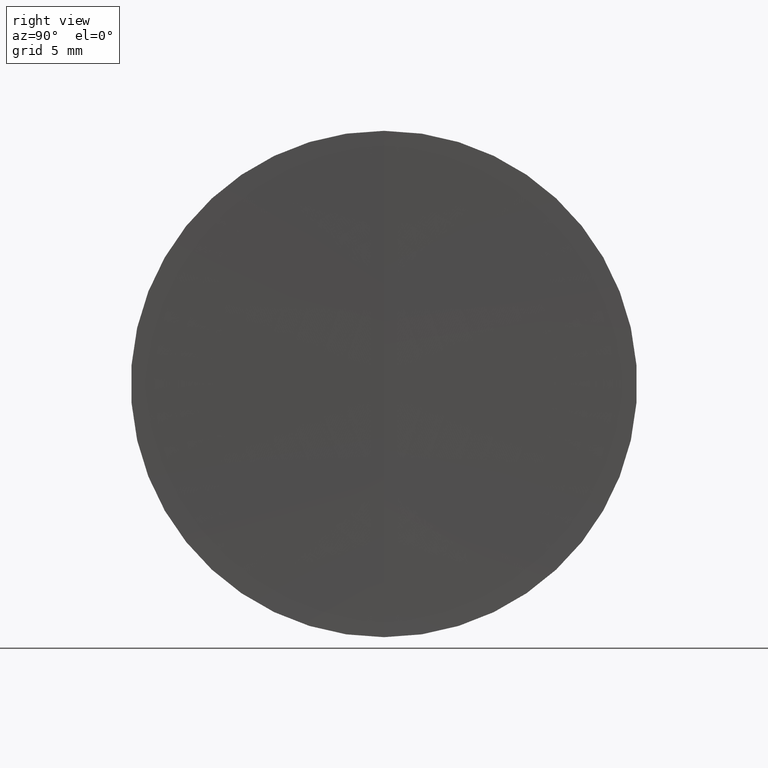
[diagram: clean part render]
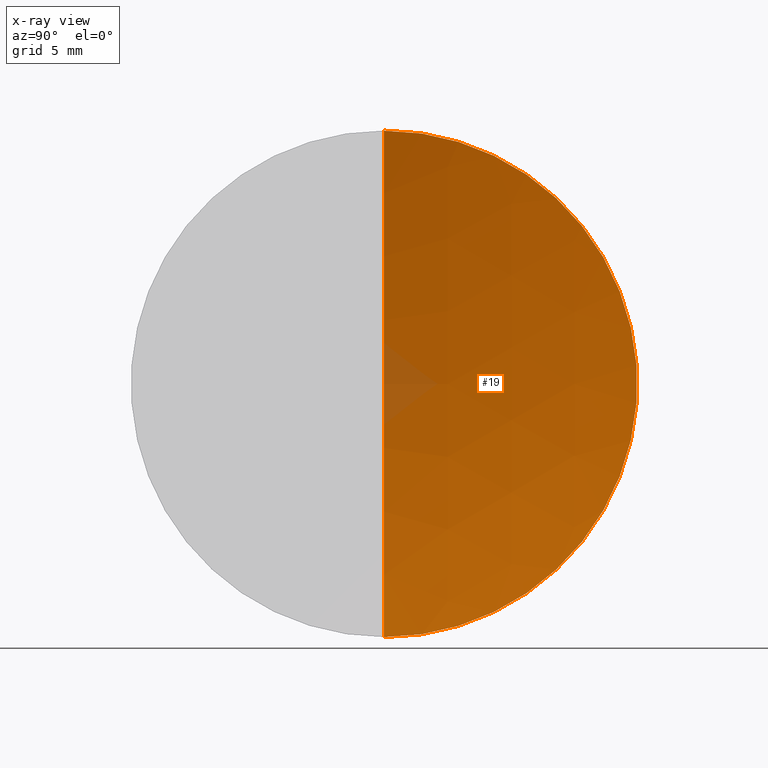
[diagram: x-ray — body ghosted, one internal face saturated and labeled with its STEP entity id]
A machine part, right view, then the same camera in x-ray: the body is ghosted and one INTERNAL B-rep face — a face not visible from any outside direction — is saturated and labeled: STEP entity #19.
In plain terms, the highlighted spherical surface has radius 49.9 mm.
Its self-contained STEP definition (entity closure, byte-faithful):
#3 = CIRCLE ( 'NONE', #310, 49.90000000000014800 ) ;
#19 = ADVANCED_FACE ( 'NONE', ( #207 ), #73, .F. ) ;
#30 = EDGE_CURVE ( 'NONE', #163, #271, #325, .T. ) ;
#32 = CARTESIAN_POINT ( 'NONE',  ( 305.5946505410973400, 0.0000000000000000000, -3.235630404515127800E-022 ) ) ;
#39 = DIRECTION ( 'NONE',  ( -2.249639673992786700E-032, -1.000000000000000000, -1.224646799147353200E-016 ) ) ;
#70 = CIRCLE ( 'NONE', #225, 49.90000000000014800 ) ;
#73 = SPHERICAL_SURFACE ( 'NONE', #152, 49.90000000000014800 ) ;
#82 = ORIENTED_EDGE ( 'NONE', *, *, #230, .T. ) ;
#90 = CARTESIAN_POINT ( 'NONE',  ( 255.6946505410971900, 0.0000000000000000000, 6.110987204182271600E-015 ) ) ;
#92 = DIRECTION ( 'NONE',  ( -0.0000000000000000000, -1.000000000000000000, -0.0000000000000000000 ) ) ;
#102 = CARTESIAN_POINT ( 'NONE',  ( 257.3378375505981200, 0.0000000000000000000, 12.69999999999999900 ) ) ;
#128 = ORIENTED_EDGE ( 'NONE', *, *, #30, .F. ) ;
#149 = VERTEX_POINT ( 'NONE', #90 ) ;
#152 = AXIS2_PLACEMENT_3D ( 'NONE', #32, #92, #258 ) ;
#156 = ORIENTED_EDGE ( 'NONE', *, *, #260, .F. ) ;
#163 = VERTEX_POINT ( 'NONE', #102 ) ;
#203 = DIRECTION ( 'NONE',  ( 0.0000000000000000000, 0.0000000000000000000, 1.000000000000000000 ) ) ;
#207 = FACE_OUTER_BOUND ( 'NONE', #318, .T. ) ;
#225 = AXIS2_PLACEMENT_3D ( 'NONE', #289, #239, #203 ) ;
#230 = EDGE_CURVE ( 'NONE', #163, #149, #3, .T. ) ;
#233 = DIRECTION ( 'NONE',  ( -1.000000000000000000, -0.0000000000000000000, 1.836970198721029900E-016 ) ) ;
#239 = DIRECTION ( 'NONE',  ( -0.0000000000000000000, 1.000000000000000000, 0.0000000000000000000 ) ) ;
#248 = DIRECTION ( 'NONE',  ( 0.0000000000000000000, 1.224646799147353200E-016, -1.000000000000000000 ) ) ;
#258 = DIRECTION ( 'NONE',  ( 0.0000000000000000000, 0.0000000000000000000, -1.000000000000000000 ) ) ;
#260 = EDGE_CURVE ( 'NONE', #271, #149, #70, .T. ) ;
#271 = VERTEX_POINT ( 'NONE', #337 ) ;
#289 = CARTESIAN_POINT ( 'NONE',  ( 305.5946505410973400, 0.0000000000000000000, -3.235630404515127800E-022 ) ) ;
#297 = AXIS2_PLACEMENT_3D ( 'NONE', #300, #233, #324 ) ;
#300 = CARTESIAN_POINT ( 'NONE',  ( 257.3378375505981200, 0.0000000000000000000, -4.742210204816824600E-014 ) ) ;
#310 = AXIS2_PLACEMENT_3D ( 'NONE', #335, #39, #248 ) ;
#318 = EDGE_LOOP ( 'NONE', ( #128, #82, #156 ) ) ;
#324 = DIRECTION ( 'NONE',  ( 0.0000000000000000000, 0.0000000000000000000, 1.000000000000000000 ) ) ;
#325 = CIRCLE ( 'NONE', #297, 12.70000000000004500 ) ;
#335 = CARTESIAN_POINT ( 'NONE',  ( 305.5946505410973400, 0.0000000000000000000, -3.235630404515127800E-022 ) ) ;
#337 = CARTESIAN_POINT ( 'NONE',  ( 257.3378375505981200, 1.555301434917144300E-015, -12.70000000000009300 ) ) ;